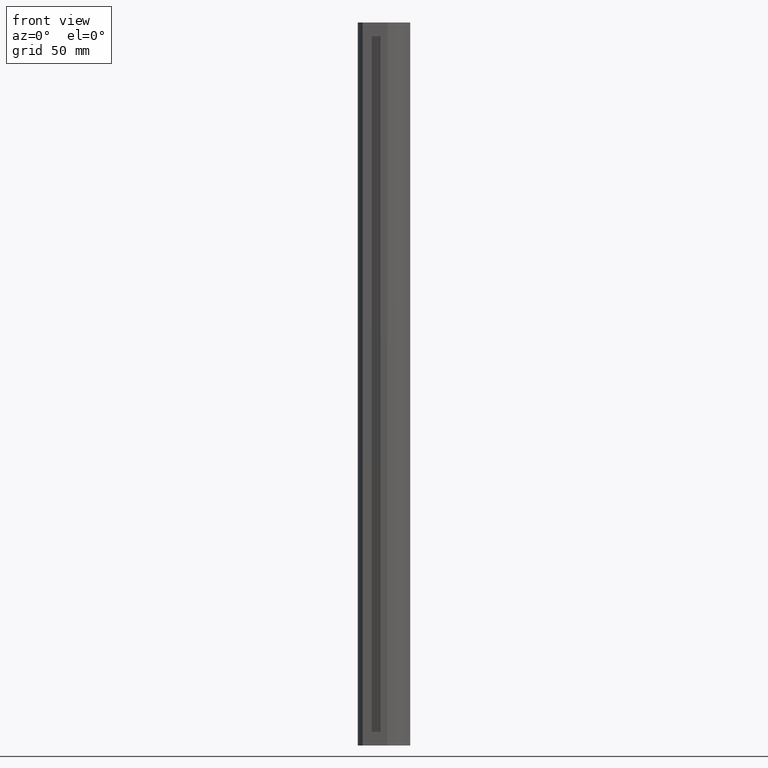
[diagram: clean part render]
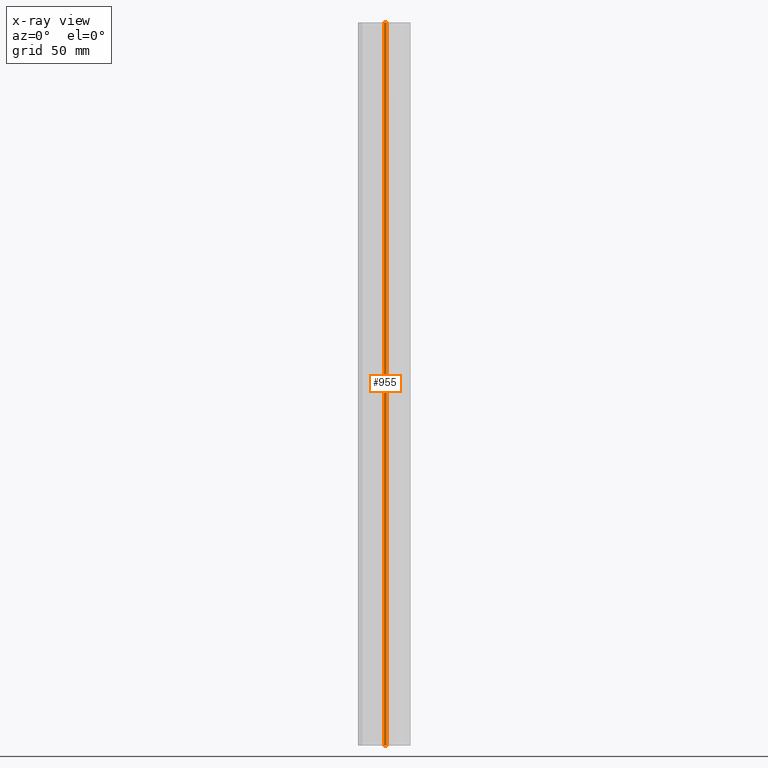
[diagram: x-ray — body ghosted, one internal face saturated and labeled with its STEP entity id]
A machine part, front view, then the same camera in x-ray: the body is ghosted and one INTERNAL B-rep face — a face not visible from any outside direction — is saturated and labeled: STEP entity #955.
In plain terms, the highlighted planar face has unit normal (0, 1, 0).
Its self-contained STEP definition (entity closure, byte-faithful):
#41=PLANE('',#1038);
#85=FACE_OUTER_BOUND('',#133,.T.);
#133=EDGE_LOOP('',(#759,#760,#761,#762));
#232=LINE('',#1508,#350);
#234=LINE('',#1512,#352);
#235=LINE('',#1514,#353);
#236=LINE('',#1515,#354);
#350=VECTOR('',#1229,10.);
#352=VECTOR('',#1233,10.);
#353=VECTOR('',#1234,10.);
#354=VECTOR('',#1235,10.);
#473=VERTEX_POINT('',#1505);
#474=VERTEX_POINT('',#1507);
#475=VERTEX_POINT('',#1511);
#476=VERTEX_POINT('',#1513);
#592=EDGE_CURVE('',#474,#473,#232,.T.);
#594=EDGE_CURVE('',#475,#473,#234,.T.);
#595=EDGE_CURVE('',#476,#475,#235,.T.);
#596=EDGE_CURVE('',#474,#476,#236,.T.);
#759=ORIENTED_EDGE('',*,*,#594,.F.);
#760=ORIENTED_EDGE('',*,*,#595,.F.);
#761=ORIENTED_EDGE('',*,*,#596,.F.);
#762=ORIENTED_EDGE('',*,*,#592,.T.);
#955=ADVANCED_FACE('',(#85),#41,.T.);
#1038=AXIS2_PLACEMENT_3D('',#1510,#1231,#1232);
#1229=DIRECTION('',(0.,0.,1.));
#1231=DIRECTION('center_axis',(0.,1.,0.));
#1232=DIRECTION('ref_axis',(-1.,0.,0.));
#1233=DIRECTION('',(-1.,0.,0.));
#1234=DIRECTION('',(0.,0.,1.));
#1235=DIRECTION('',(1.,0.,0.));
#1505=CARTESIAN_POINT('',(1.49972978480406E-9,-20.0000000007974,413.));
#1507=CARTESIAN_POINT('',(1.49972978480406E-9,-20.0000000007974,0.));
#1508=CARTESIAN_POINT('',(1.49972978480406E-9,-20.0000000007974,0.));
#1510=CARTESIAN_POINT('Origin',(1.50000000134965,-20.0000000007974,0.));
#1511=CARTESIAN_POINT('',(1.50000000134965,-20.0000000007974,413.));
#1512=CARTESIAN_POINT('',(0.750000000674823,-20.0000000007974,413.));
#1513=CARTESIAN_POINT('',(1.50000000134965,-20.0000000007974,0.));
#1514=CARTESIAN_POINT('',(1.50000000134965,-20.0000000007974,0.));
#1515=CARTESIAN_POINT('',(0.750000000674823,-20.0000000007974,0.));